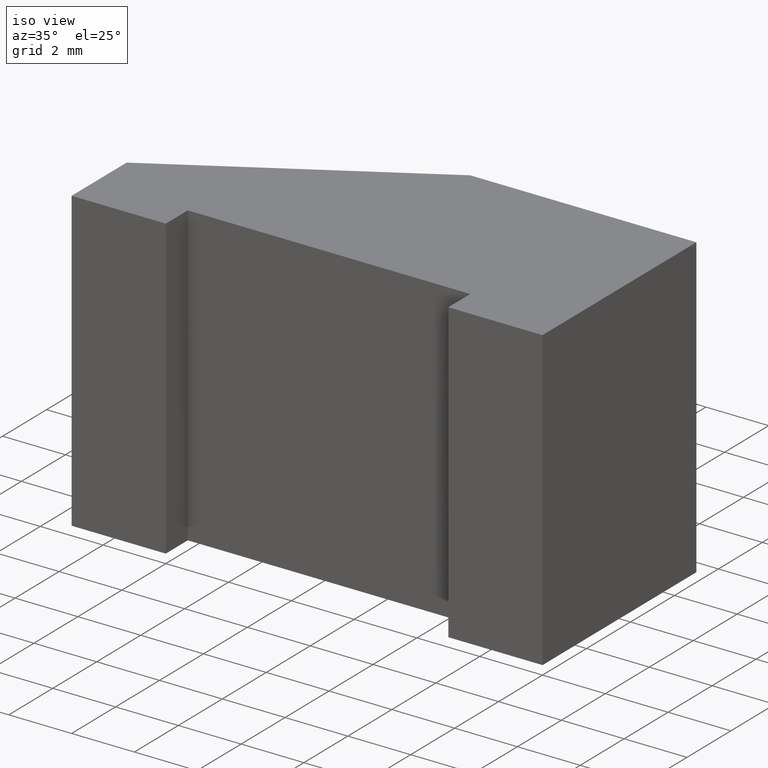
[diagram: clean part render]
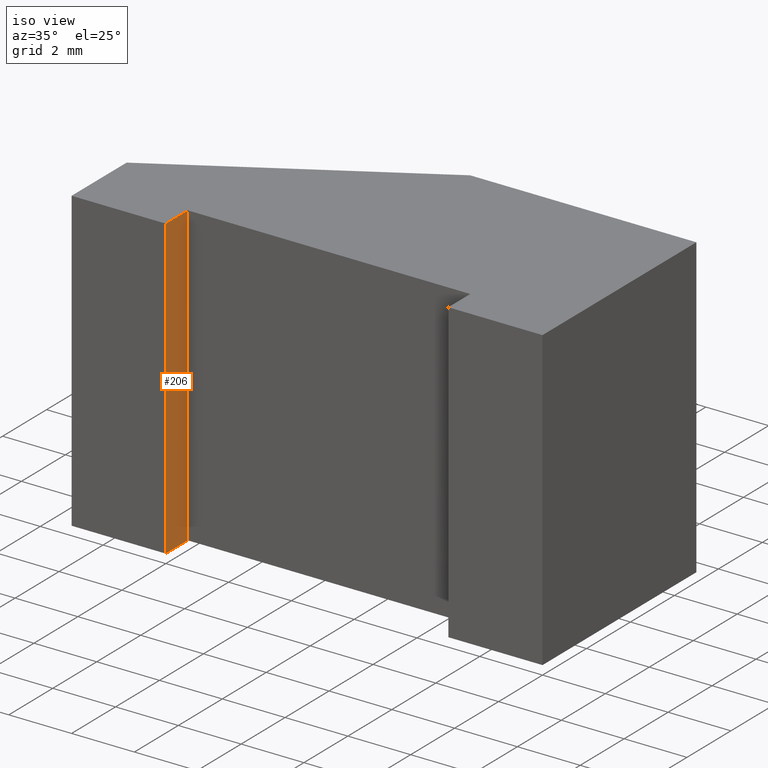
[diagram: same view with one face highlighted and labeled with its STEP entity id]
A machine part, iso view. The second image highlights one B-rep face of the part: STEP entity #206.
In plain terms, the highlighted planar face has unit normal (1, -0, 0).
Its self-contained STEP definition (entity closure, byte-faithful):
#17=FACE_OUTER_BOUND('',#28,.T.);
#28=EDGE_LOOP('',(#147,#148,#149,#150));
#44=LINE('',#319,#71);
#46=LINE('',#323,#73);
#47=LINE('',#325,#74);
#48=LINE('',#326,#75);
#71=VECTOR('',#264,10.);
#73=VECTOR('',#268,10.);
#74=VECTOR('',#269,10.);
#75=VECTOR('',#270,10.);
#96=VERTEX_POINT('',#316);
#97=VERTEX_POINT('',#318);
#98=VERTEX_POINT('',#322);
#99=VERTEX_POINT('',#324);
#116=EDGE_CURVE('',#97,#96,#44,.T.);
#118=EDGE_CURVE('',#96,#98,#46,.T.);
#119=EDGE_CURVE('',#99,#98,#47,.T.);
#120=EDGE_CURVE('',#99,#97,#48,.T.);
#147=ORIENTED_EDGE('',*,*,#118,.T.);
#148=ORIENTED_EDGE('',*,*,#119,.F.);
#149=ORIENTED_EDGE('',*,*,#120,.T.);
#150=ORIENTED_EDGE('',*,*,#116,.T.);
#192=PLANE('',#240);
#206=ADVANCED_FACE('',(#17),#192,.T.);
#240=AXIS2_PLACEMENT_3D('',#321,#266,#267);
#264=DIRECTION('',(0.,0.,1.));
#266=DIRECTION('center_axis',(1.,-2.22044604925031E-15,0.));
#267=DIRECTION('ref_axis',(0.,0.,-1.));
#268=DIRECTION('',(-2.22044604925031E-15,-1.,0.));
#269=DIRECTION('',(0.,0.,1.));
#270=DIRECTION('',(2.22044604925031E-15,1.,0.));
#316=CARTESIAN_POINT('',(-12.,1.,9.5));
#318=CARTESIAN_POINT('',(-12.,1.,0.));
#319=CARTESIAN_POINT('',(-12.,1.,0.));
#321=CARTESIAN_POINT('Origin',(-12.,1.,0.));
#322=CARTESIAN_POINT('',(-12.,2.22044604925031E-15,9.5));
#323=CARTESIAN_POINT('',(-12.,2.22044604925031E-15,9.5));
#324=CARTESIAN_POINT('',(-12.,2.22044604925031E-15,0.));
#325=CARTESIAN_POINT('',(-12.,2.22044604925031E-15,0.));
#326=CARTESIAN_POINT('',(-12.,2.22044604925031E-15,0.));